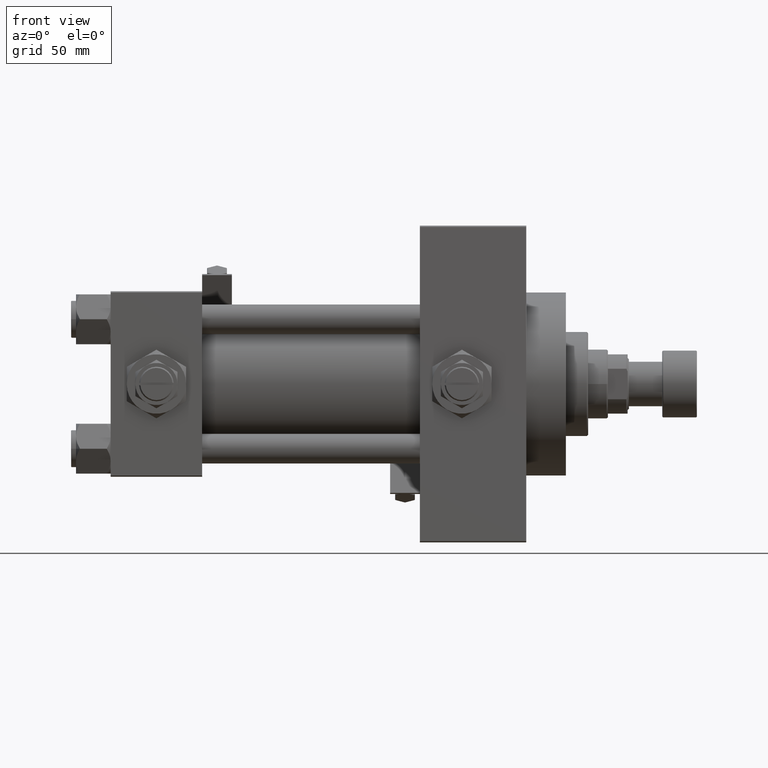
[diagram: clean part render]
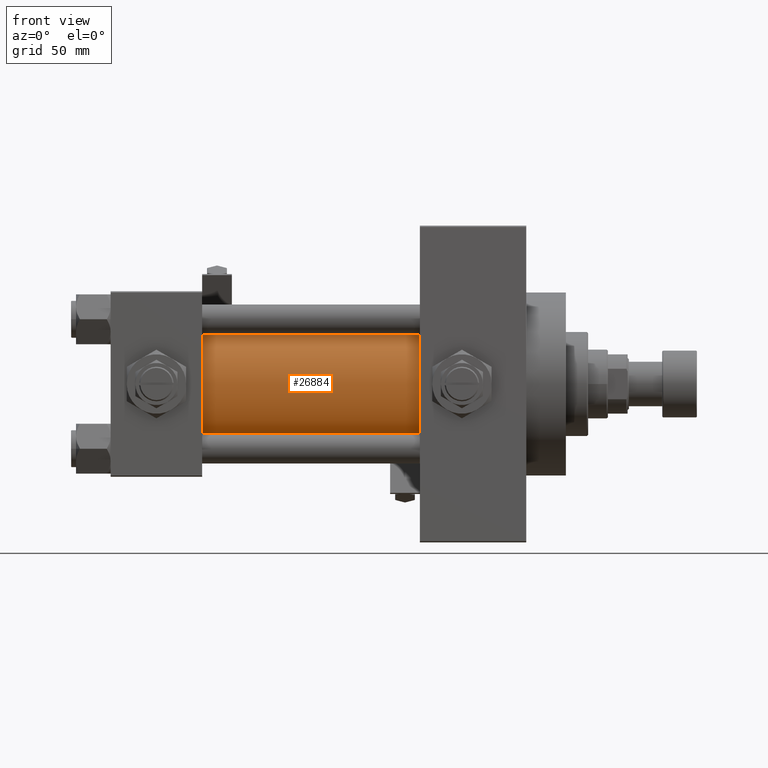
[diagram: same view with one face highlighted and labeled with its STEP entity id]
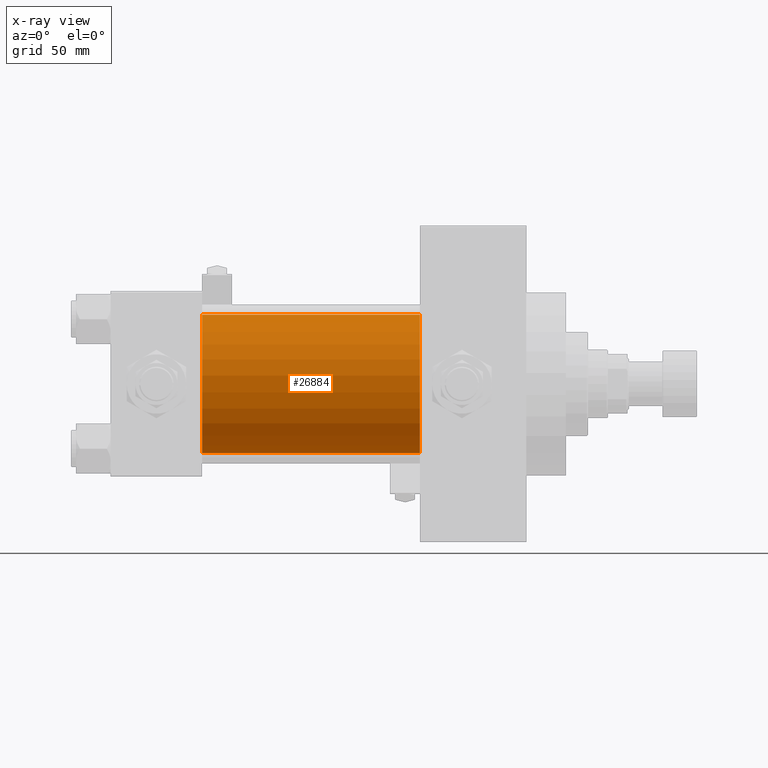
[diagram: x-ray of the same camera — body ghosted, the highlighted face saturated]
A machine part, front view. The second image highlights one B-rep face of the part: STEP entity #26884.
The next image is the same camera in x-ray: the body ghosted, the highlighted face saturated — about 0% of this face is hidden behind the body in this view.
In plain terms, the highlighted cylindrical surface (partial cylindrical patch) has radius 28 mm, axis along (-1, -0, -0).
Its self-contained STEP definition (entity closure, byte-faithful):
#673 = CARTESIAN_POINT ( 'NONE',  ( 125.0000000000000000, 8.269258236473784371E-16, -28.00000000000000000 ) ) ;
#1129 = AXIS2_PLACEMENT_3D ( 'NONE', #14184, #2351, #26743 ) ;
#2351 = DIRECTION ( 'NONE',  ( -1.000000000000000000, -0.000000000000000000, -0.000000000000000000 ) ) ;
#3676 = DIRECTION ( 'NONE',  ( 1.000000000000000000, -0.000000000000000000, 0.000000000000000000 ) ) ;
#4036 = VERTEX_POINT ( 'NONE', #44843 ) ;
#4376 = LINE ( 'NONE', #35734, #15937 ) ;
#5172 = CARTESIAN_POINT ( 'NONE',  ( 125.0000000000000000, -2.602085213965210642E-15, 28.00000000000000000 ) ) ;
#7324 = CARTESIAN_POINT ( 'NONE',  ( 37.00000000000000711, -2.602085213965210642E-15, 28.00000000000000000 ) ) ;
#8533 = VECTOR ( 'NONE', #16343, 1000.000000000000000 ) ;
#12507 = DIRECTION ( 'NONE',  ( 0.000000000000000000, 0.000000000000000000, -1.000000000000000000 ) ) ;
#14184 = CARTESIAN_POINT ( 'NONE',  ( 125.0000000000000000, -2.602085213965210642E-15, 0.000000000000000000 ) ) ;
#14504 = VERTEX_POINT ( 'NONE', #7324 ) ;
#15937 = VECTOR ( 'NONE', #27764, 1000.000000000000000 ) ;
#16343 = DIRECTION ( 'NONE',  ( -1.000000000000000000, -0.000000000000000000, -0.000000000000000000 ) ) ;
#16879 = CIRCLE ( 'NONE', #33310, 28.00000000000000000 ) ;
#17331 = AXIS2_PLACEMENT_3D ( 'NONE', #46670, #42811, #12507 ) ;
#21395 = CIRCLE ( 'NONE', #17331, 28.00000000000000000 ) ;
#23928 = EDGE_CURVE ( 'NONE', #50574, #4036, #44854, .T. ) ;
#25739 = ORIENTED_EDGE ( 'NONE', *, *, #23928, .F. ) ;
#26743 = DIRECTION ( 'NONE',  ( 0.000000000000000000, 0.000000000000000000, 1.000000000000000000 ) ) ;
#26884 = ADVANCED_FACE ( 'NONE', ( #46525 ), #34474, .T. ) ;
#27764 = DIRECTION ( 'NONE',  ( -1.000000000000000000, -0.000000000000000000, -0.000000000000000000 ) ) ;
#27975 = EDGE_CURVE ( 'NONE', #33719, #14504, #4376, .T. ) ;
#31673 = ORIENTED_EDGE ( 'NONE', *, *, #44516, .F. ) ;
#31802 = EDGE_CURVE ( 'NONE', #14504, #4036, #16879, .T. ) ;
#32890 = ORIENTED_EDGE ( 'NONE', *, *, #27975, .T. ) ;
#33310 = AXIS2_PLACEMENT_3D ( 'NONE', #42733, #3676, #39658 ) ;
#33719 = VERTEX_POINT ( 'NONE', #5172 ) ;
#34474 = CYLINDRICAL_SURFACE ( 'NONE', #1129, 28.00000000000000000 ) ;
#34855 = EDGE_LOOP ( 'NONE', ( #25739, #31673, #32890, #37889 ) ) ;
#35734 = CARTESIAN_POINT ( 'NONE',  ( 125.0000000000000000, -2.602085213965210642E-15, 28.00000000000000000 ) ) ;
#37889 = ORIENTED_EDGE ( 'NONE', *, *, #31802, .T. ) ;
#39658 = DIRECTION ( 'NONE',  ( 0.000000000000000000, 0.000000000000000000, 1.000000000000000000 ) ) ;
#42733 = CARTESIAN_POINT ( 'NONE',  ( 37.00000000000000711, -2.602085213965210642E-15, 0.000000000000000000 ) ) ;
#42811 = DIRECTION ( 'NONE',  ( 1.000000000000000000, 0.000000000000000000, 0.000000000000000000 ) ) ;
#44516 = EDGE_CURVE ( 'NONE', #33719, #50574, #21395, .T. ) ;
#44843 = CARTESIAN_POINT ( 'NONE',  ( 37.00000000000000711, 8.269258236473784371E-16, -28.00000000000000000 ) ) ;
#44854 = LINE ( 'NONE', #673, #8533 ) ;
#46525 = FACE_OUTER_BOUND ( 'NONE', #34855, .T. ) ;
#46670 = CARTESIAN_POINT ( 'NONE',  ( 125.0000000000000000, -2.602085213965210642E-15, 0.000000000000000000 ) ) ;
#49510 = CARTESIAN_POINT ( 'NONE',  ( 125.0000000000000000, 8.269258236473784371E-16, -28.00000000000000000 ) ) ;
#50574 = VERTEX_POINT ( 'NONE', #49510 ) ;